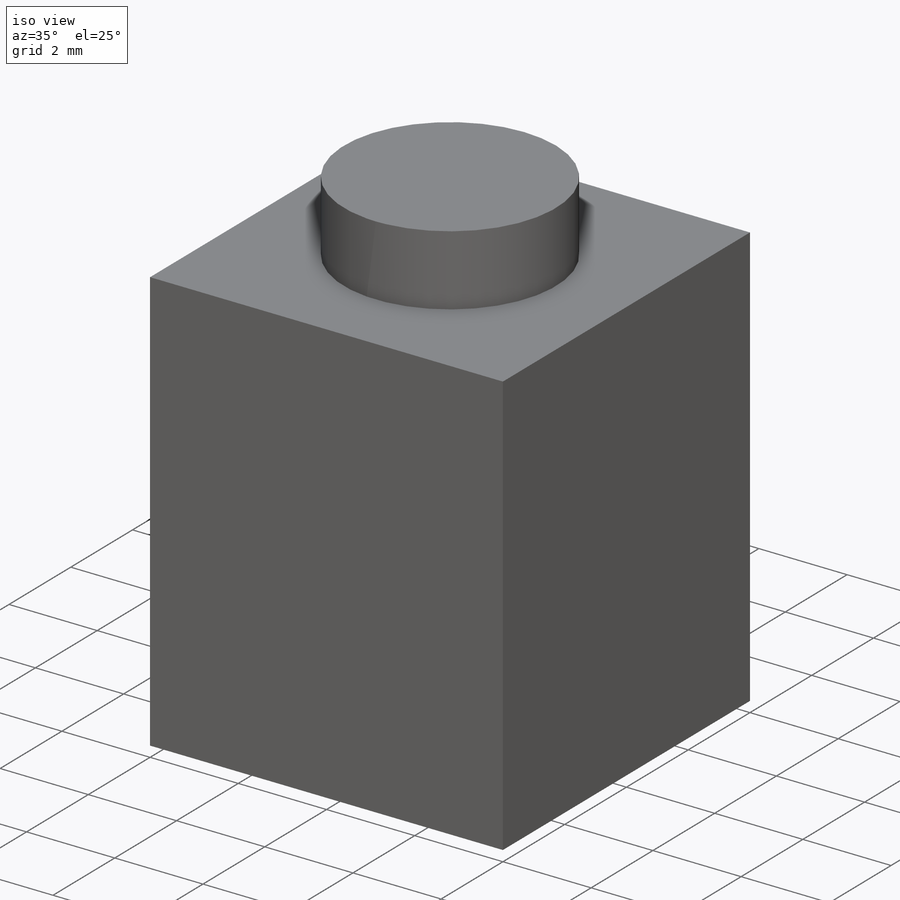
[diagram: iso view]
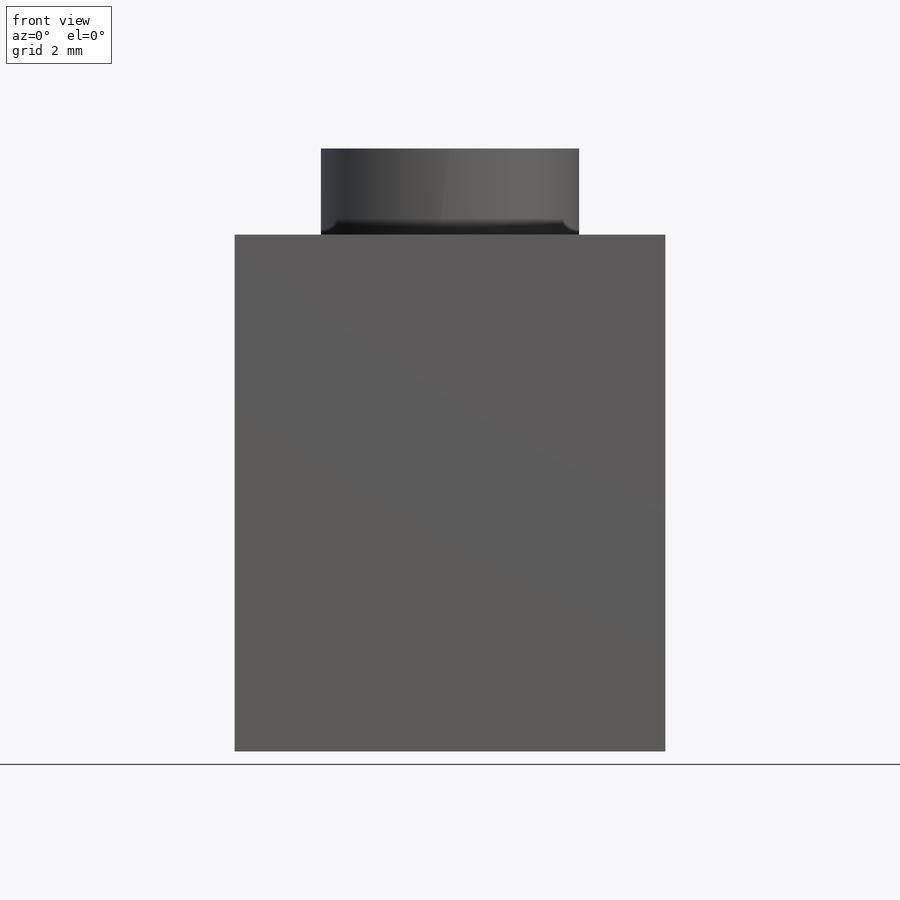
[diagram: front view]
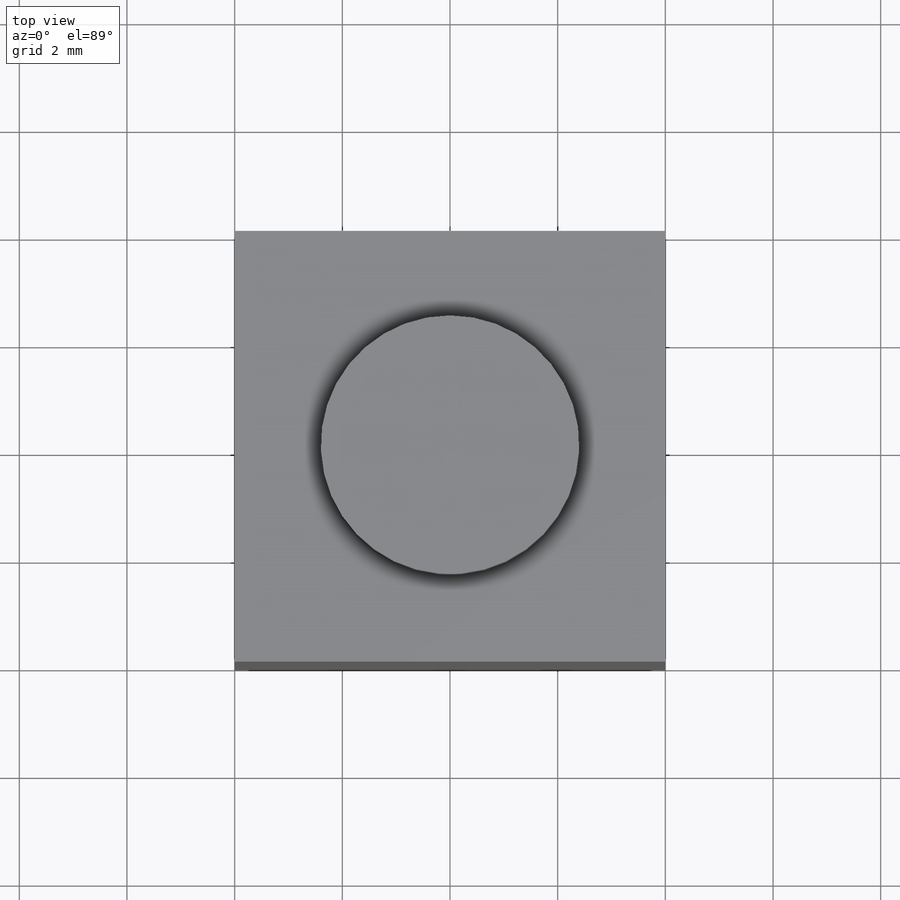
[diagram: top view]
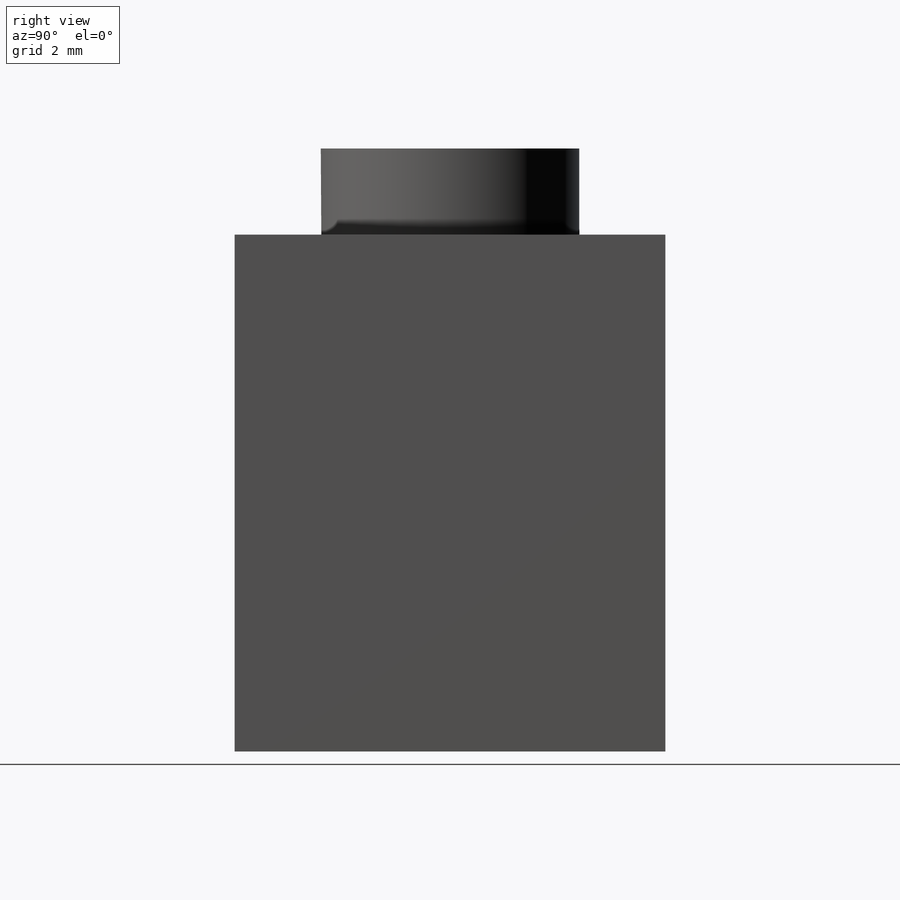
[diagram: right view]
SOLIDWORKS PART (.sldprt)
format: sldprt  version: not decoded by parser v0  size: 119,808 bytes
history: native  units: mm
features: sketch x2, extrude x2, material x1, shell x1 (+12 scaffold rows collapsed)
feature tree (18):
  scaffold x12  (default folders/planes/origin — collapsed)
  material  "Material <not specified>"
  sketch  "Sketch3"  dims[D1=8.0mm D2=8.0mm]
  extrude  "Boss-Extrude1"  Depth=9.6mm
  sketch  "Sketch4"  dims[D1=4.8mm D2=1.6mm D3=1.6mm D4=8.0mm]
  extrude  "Boss-Extrude2"  Depth=1.6mm
  shell  "Shell1"  Thickness=1.8mm
decode coverage: 5 of 5 modeling features carry decoded parameters
note: suppression state not decoded; provenance and decode notes live in map.json
